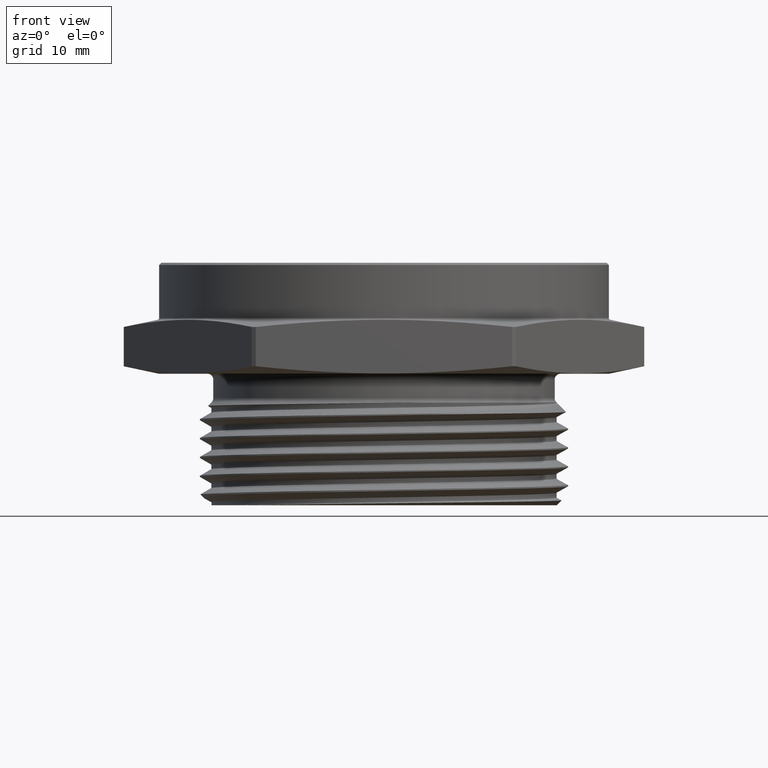
[diagram: clean part render]
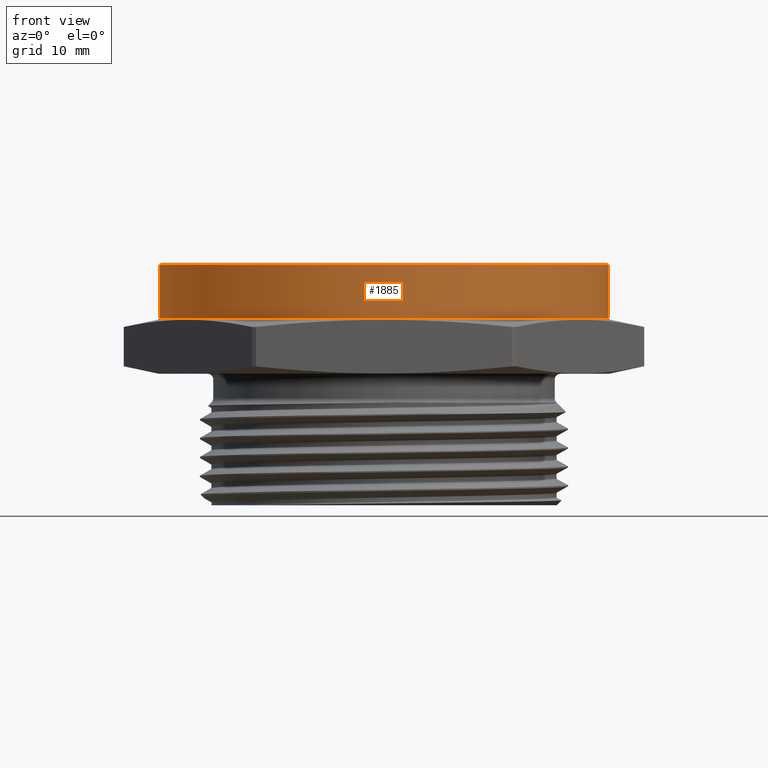
[diagram: same view with one face highlighted and labeled with its STEP entity id]
A machine part, front view. The second image highlights one B-rep face of the part: STEP entity #1885.
In plain terms, the highlighted cylindrical surface (partial cylindrical patch) has radius 25.2095 mm, axis along (-0, -0, -1).
Its self-contained STEP definition (entity closure, byte-faithful):
#42 = EDGE_CURVE ( 'NONE', #1391, #1405, #2556, .T. ) ;
#89 = AXIS2_PLACEMENT_3D ( 'NONE', #2429, #2430, #2431 ) ;
#120 = AXIS2_PLACEMENT_3D ( 'NONE', #337, #338, #339 ) ;
#178 = AXIS2_PLACEMENT_3D ( 'NONE', #550, #546, #547 ) ;
#337 = CARTESIAN_POINT ( 'NONE',  ( 0.0000000000000000000, 0.0000000000000000000, 0.2464782722655602700 ) ) ;
#338 = DIRECTION ( 'NONE',  ( 6.123233995736748800E-017, 0.0000000000000000000, 1.000000000000000000 ) ) ;
#339 = DIRECTION ( 'NONE',  ( 1.000000000000000000, 0.0000000000000000000, -6.881229203184539000E-017 ) ) ;
#358 = DIRECTION ( 'NONE',  ( -0.0000000000000000000, -0.0000000000000000000, -1.000000000000000000 ) ) ;
#359 = CARTESIAN_POINT ( 'NONE',  ( 0.9925000000000004900, 1.215461948153748600E-016, 0.4899999999999999900 ) ) ;
#364 = CARTESIAN_POINT ( 'NONE',  ( -0.9925000000000004900, 0.0000000000000000000, 0.4899999999999999900 ) ) ;
#365 = DIRECTION ( 'NONE',  ( -0.0000000000000000000, -0.0000000000000000000, -1.000000000000000000 ) ) ;
#546 = DIRECTION ( 'NONE',  ( -0.0000000000000000000, -0.0000000000000000000, -1.000000000000000000 ) ) ;
#547 = DIRECTION ( 'NONE',  ( -1.000000000000000000, 0.0000000000000000000, 0.0000000000000000000 ) ) ;
#550 = CARTESIAN_POINT ( 'NONE',  ( 0.0000000000000000000, 0.0000000000000000000, 0.4899999999999999900 ) ) ;
#1325 = EDGE_CURVE ( 'NONE', #1388, #1398, #2625, .T. ) ;
#1334 = EDGE_CURVE ( 'NONE', #1391, #1398, #2634, .T. ) ;
#1336 = EDGE_CURVE ( 'NONE', #1405, #1388, #2639, .T. ) ;
#1388 = VERTEX_POINT ( 'NONE', #2963 ) ;
#1391 = VERTEX_POINT ( 'NONE', #2966 ) ;
#1398 = VERTEX_POINT ( 'NONE', #2971 ) ;
#1405 = VERTEX_POINT ( 'NONE', #2978 ) ;
#1635 = EDGE_LOOP ( 'NONE', ( #1729, #1730, #1731, #1732 ) ) ;
#1729 = ORIENTED_EDGE ( 'NONE', *, *, #1334, .F. ) ;
#1730 = ORIENTED_EDGE ( 'NONE', *, *, #42, .T. ) ;
#1731 = ORIENTED_EDGE ( 'NONE', *, *, #1336, .T. ) ;
#1732 = ORIENTED_EDGE ( 'NONE', *, *, #1325, .T. ) ;
#1885 = ADVANCED_FACE ( 'NONE', ( #2749 ), #2752, .T. ) ;
#2429 = CARTESIAN_POINT ( 'NONE',  ( 0.0000000000000000000, 0.0000000000000000000, 0.4800000000000002000 ) ) ;
#2430 = DIRECTION ( 'NONE',  ( 0.0000000000000000000, 0.0000000000000000000, -1.000000000000000000 ) ) ;
#2431 = DIRECTION ( 'NONE',  ( 1.000000000000000000, 0.0000000000000000000, 0.0000000000000000000 ) ) ;
#2556 = CIRCLE ( 'NONE', #89, 0.9925000000000004900 ) ;
#2625 = CIRCLE ( 'NONE', #120, 0.9925000000000004900 ) ;
#2634 = LINE ( 'NONE', #359, #2638 ) ;
#2638 = VECTOR ( 'NONE', #365, 39.37007874015748100 ) ;
#2639 = LINE ( 'NONE', #364, #2641 ) ;
#2641 = VECTOR ( 'NONE', #358, 39.37007874015748100 ) ;
#2749 = FACE_OUTER_BOUND ( 'NONE', #1635, .T. ) ;
#2752 = CYLINDRICAL_SURFACE ( 'NONE', #178, 0.9925000000000004900 ) ;
#2963 = CARTESIAN_POINT ( 'NONE',  ( -0.9925000000000004900, 0.0000000000000000000, 0.2464782722655603500 ) ) ;
#2966 = CARTESIAN_POINT ( 'NONE',  ( 0.9925000000000004900, 1.215461948153748600E-016, 0.4800000000000002000 ) ) ;
#2971 = CARTESIAN_POINT ( 'NONE',  ( 0.9925000000000004900, 1.215461948153748600E-016, 0.2464782722655602100 ) ) ;
#2978 = CARTESIAN_POINT ( 'NONE',  ( -0.9925000000000004900, 0.0000000000000000000, 0.4800000000000002000 ) ) ;